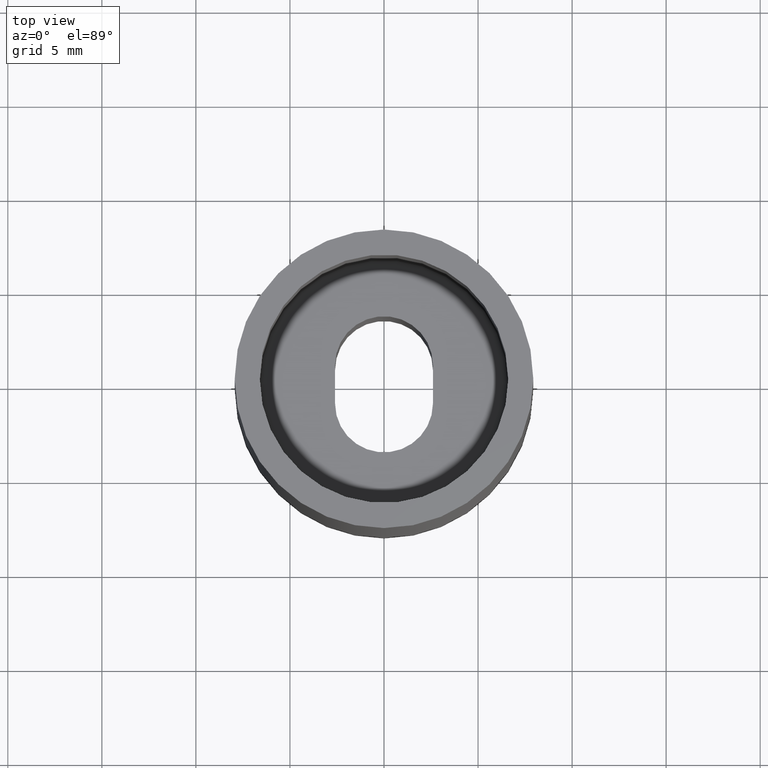
[diagram: clean part render]
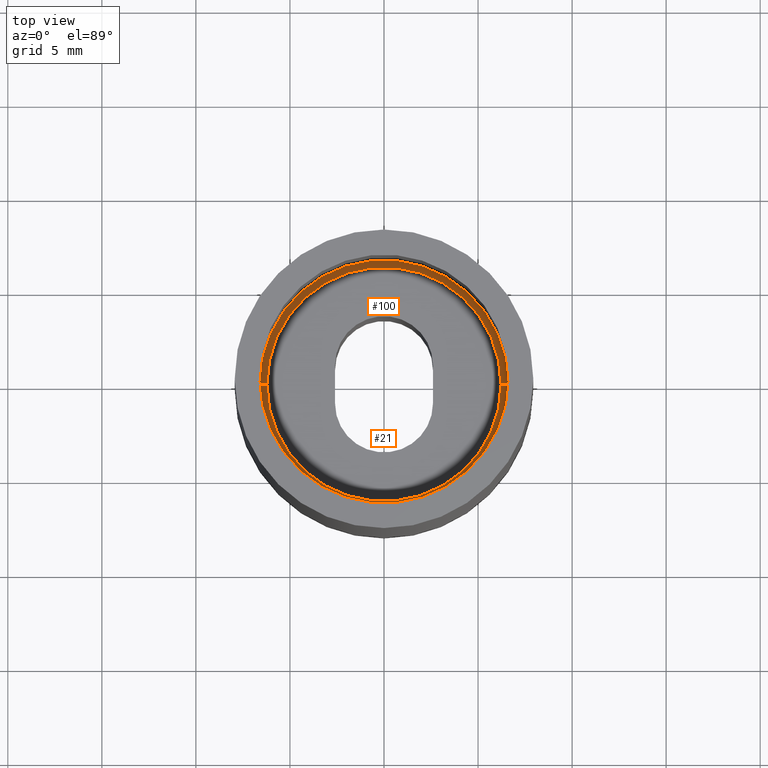
[diagram: same view with one multi-face feature highlighted, each face labeled with its STEP entity id]
A machine part, top view. The highlighted faces form ONE feature: a constant-radius fillet chain: 2 tangent blend faces with common blend radius 0.381 mm. The faces share edges in the B-rep.
Their STEP definitions:
[1] entity #100 (Torus):
#7 = DIRECTION ( 'NONE',  ( -0.0000000000000000000, 0.0000000000000000000, 1.000000000000000000 ) ) ;
#10 = EDGE_CURVE ( 'NONE', #80, #418, #106, .T. ) ;
#24 = CARTESIAN_POINT ( 'NONE',  ( -0.2450000000000000000, 3.000384657911014900E-017, -0.6450000000000001300 ) ) ;
#25 = VERTEX_POINT ( 'NONE', #159 ) ;
#29 = ORIENTED_EDGE ( 'NONE', *, *, #217, .F. ) ;
#36 = CARTESIAN_POINT ( 'NONE',  ( -0.2450000000000000000, 3.092233167847066800E-017, -0.6600000000000000300 ) ) ;
#56 = CARTESIAN_POINT ( 'NONE',  ( 0.2450000000000000000, 0.0000000000000000000, -0.6450000000000001300 ) ) ;
#57 = AXIS2_PLACEMENT_3D ( 'NONE', #56, #116, #290 ) ;
#80 = VERTEX_POINT ( 'NONE', #341 ) ;
#98 = DIRECTION ( 'NONE',  ( 1.000000000000000000, 0.0000000000000000000, 0.0000000000000000000 ) ) ;
#100 = ADVANCED_FACE ( 'NONE', ( #145 ), #101, .F. ) ;
#101 = TOROIDAL_SURFACE ( 'NONE', #113, 0.2450000000000000000, 0.01499999999999999900 ) ;
#106 = CIRCLE ( 'NONE', #183, 0.2600000000000000100 ) ;
#113 = AXIS2_PLACEMENT_3D ( 'NONE', #419, #7, #98 ) ;
#115 = CIRCLE ( 'NONE', #213, 0.01500000000000001200 ) ;
#116 = DIRECTION ( 'NONE',  ( 0.0000000000000000000, -1.000000000000000000, 0.0000000000000000000 ) ) ;
#119 = CIRCLE ( 'NONE', #266, 0.2450000000000000000 ) ;
#131 = DIRECTION ( 'NONE',  ( 1.000000000000000000, 0.0000000000000000000, 0.0000000000000000000 ) ) ;
#134 = DIRECTION ( 'NONE',  ( 1.000000000000000000, 0.0000000000000000000, 0.0000000000000000000 ) ) ;
#145 = FACE_OUTER_BOUND ( 'NONE', #319, .T. ) ;
#148 = VERTEX_POINT ( 'NONE', #36 ) ;
#159 = CARTESIAN_POINT ( 'NONE',  ( 0.2450000000000000000, 0.0000000000000000000, -0.6600000000000000300 ) ) ;
#167 = CARTESIAN_POINT ( 'NONE',  ( 0.0000000000000000000, 0.0000000000000000000, -0.6450000000000001300 ) ) ;
#183 = AXIS2_PLACEMENT_3D ( 'NONE', #167, #263, #134 ) ;
#185 = CIRCLE ( 'NONE', #57, 0.01499999999999997700 ) ;
#187 = DIRECTION ( 'NONE',  ( 1.224646799147353200E-016, 1.000000000000000000, 0.0000000000000000000 ) ) ;
#213 = AXIS2_PLACEMENT_3D ( 'NONE', #24, #187, #413 ) ;
#217 = EDGE_CURVE ( 'NONE', #148, #80, #115, .T. ) ;
#237 = DIRECTION ( 'NONE',  ( -0.0000000000000000000, 0.0000000000000000000, 1.000000000000000000 ) ) ;
#255 = EDGE_CURVE ( 'NONE', #25, #418, #185, .T. ) ;
#263 = DIRECTION ( 'NONE',  ( 0.0000000000000000000, -0.0000000000000000000, -1.000000000000000000 ) ) ;
#266 = AXIS2_PLACEMENT_3D ( 'NONE', #396, #237, #131 ) ;
#290 = DIRECTION ( 'NONE',  ( 0.0000000000000000000, 0.0000000000000000000, -1.000000000000000000 ) ) ;
#301 = ORIENTED_EDGE ( 'NONE', *, *, #403, .F. ) ;
#319 = EDGE_LOOP ( 'NONE', ( #29, #301, #408, #331 ) ) ;
#331 = ORIENTED_EDGE ( 'NONE', *, *, #10, .F. ) ;
#335 = CARTESIAN_POINT ( 'NONE',  ( 0.2600000000000000100, 0.0000000000000000000, -0.6450000000000001300 ) ) ;
#341 = CARTESIAN_POINT ( 'NONE',  ( -0.2600000000000000100, 3.184081677783118700E-017, -0.6450000000000001300 ) ) ;
#396 = CARTESIAN_POINT ( 'NONE',  ( 0.0000000000000000000, 0.0000000000000000000, -0.6600000000000000300 ) ) ;
#403 = EDGE_CURVE ( 'NONE', #25, #148, #119, .T. ) ;
#408 = ORIENTED_EDGE ( 'NONE', *, *, #255, .T. ) ;
#413 = DIRECTION ( 'NONE',  ( -1.000000000000000000, 1.224646799147352200E-016, 0.0000000000000000000 ) ) ;
#418 = VERTEX_POINT ( 'NONE', #335 ) ;
#419 = CARTESIAN_POINT ( 'NONE',  ( 0.0000000000000000000, 0.0000000000000000000, -0.6450000000000001300 ) ) ;
[2] entity #21 (Torus):
#21 = ADVANCED_FACE ( 'NONE', ( #414 ), #344, .F. ) ;
#24 = CARTESIAN_POINT ( 'NONE',  ( -0.2450000000000000000, 3.000384657911014900E-017, -0.6450000000000001300 ) ) ;
#25 = VERTEX_POINT ( 'NONE', #159 ) ;
#36 = CARTESIAN_POINT ( 'NONE',  ( -0.2450000000000000000, 3.092233167847066800E-017, -0.6600000000000000300 ) ) ;
#56 = CARTESIAN_POINT ( 'NONE',  ( 0.2450000000000000000, 0.0000000000000000000, -0.6450000000000001300 ) ) ;
#57 = AXIS2_PLACEMENT_3D ( 'NONE', #56, #116, #290 ) ;
#80 = VERTEX_POINT ( 'NONE', #341 ) ;
#85 = ORIENTED_EDGE ( 'NONE', *, *, #255, .F. ) ;
#105 = CIRCLE ( 'NONE', #154, 0.2600000000000000100 ) ;
#115 = CIRCLE ( 'NONE', #213, 0.01500000000000001200 ) ;
#116 = DIRECTION ( 'NONE',  ( 0.0000000000000000000, -1.000000000000000000, 0.0000000000000000000 ) ) ;
#133 = AXIS2_PLACEMENT_3D ( 'NONE', #330, #198, #296 ) ;
#148 = VERTEX_POINT ( 'NONE', #36 ) ;
#154 = AXIS2_PLACEMENT_3D ( 'NONE', #238, #392, #404 ) ;
#157 = EDGE_LOOP ( 'NONE', ( #221, #361, #210, #85 ) ) ;
#159 = CARTESIAN_POINT ( 'NONE',  ( 0.2450000000000000000, 0.0000000000000000000, -0.6600000000000000300 ) ) ;
#185 = CIRCLE ( 'NONE', #57, 0.01499999999999997700 ) ;
#187 = DIRECTION ( 'NONE',  ( 1.224646799147353200E-016, 1.000000000000000000, 0.0000000000000000000 ) ) ;
#198 = DIRECTION ( 'NONE',  ( -0.0000000000000000000, 0.0000000000000000000, 1.000000000000000000 ) ) ;
#210 = ORIENTED_EDGE ( 'NONE', *, *, #295, .F. ) ;
#212 = DIRECTION ( 'NONE',  ( 1.000000000000000000, 0.0000000000000000000, 0.0000000000000000000 ) ) ;
#213 = AXIS2_PLACEMENT_3D ( 'NONE', #24, #187, #413 ) ;
#217 = EDGE_CURVE ( 'NONE', #148, #80, #115, .T. ) ;
#221 = ORIENTED_EDGE ( 'NONE', *, *, #320, .F. ) ;
#238 = CARTESIAN_POINT ( 'NONE',  ( 0.0000000000000000000, 0.0000000000000000000, -0.6450000000000001300 ) ) ;
#246 = AXIS2_PLACEMENT_3D ( 'NONE', #300, #333, #212 ) ;
#250 = CIRCLE ( 'NONE', #246, 0.2450000000000000000 ) ;
#255 = EDGE_CURVE ( 'NONE', #25, #418, #185, .T. ) ;
#290 = DIRECTION ( 'NONE',  ( 0.0000000000000000000, 0.0000000000000000000, -1.000000000000000000 ) ) ;
#295 = EDGE_CURVE ( 'NONE', #418, #80, #105, .T. ) ;
#296 = DIRECTION ( 'NONE',  ( 1.000000000000000000, 0.0000000000000000000, 0.0000000000000000000 ) ) ;
#300 = CARTESIAN_POINT ( 'NONE',  ( 0.0000000000000000000, 0.0000000000000000000, -0.6600000000000000300 ) ) ;
#320 = EDGE_CURVE ( 'NONE', #148, #25, #250, .T. ) ;
#330 = CARTESIAN_POINT ( 'NONE',  ( 0.0000000000000000000, 0.0000000000000000000, -0.6450000000000001300 ) ) ;
#333 = DIRECTION ( 'NONE',  ( -0.0000000000000000000, 0.0000000000000000000, 1.000000000000000000 ) ) ;
#335 = CARTESIAN_POINT ( 'NONE',  ( 0.2600000000000000100, 0.0000000000000000000, -0.6450000000000001300 ) ) ;
#341 = CARTESIAN_POINT ( 'NONE',  ( -0.2600000000000000100, 3.184081677783118700E-017, -0.6450000000000001300 ) ) ;
#344 = TOROIDAL_SURFACE ( 'NONE', #133, 0.2450000000000000000, 0.01499999999999999900 ) ;
#361 = ORIENTED_EDGE ( 'NONE', *, *, #217, .T. ) ;
#392 = DIRECTION ( 'NONE',  ( 0.0000000000000000000, -0.0000000000000000000, -1.000000000000000000 ) ) ;
#404 = DIRECTION ( 'NONE',  ( 1.000000000000000000, 0.0000000000000000000, 0.0000000000000000000 ) ) ;
#413 = DIRECTION ( 'NONE',  ( -1.000000000000000000, 1.224646799147352200E-016, 0.0000000000000000000 ) ) ;
#414 = FACE_OUTER_BOUND ( 'NONE', #157, .T. ) ;
#418 = VERTEX_POINT ( 'NONE', #335 ) ;